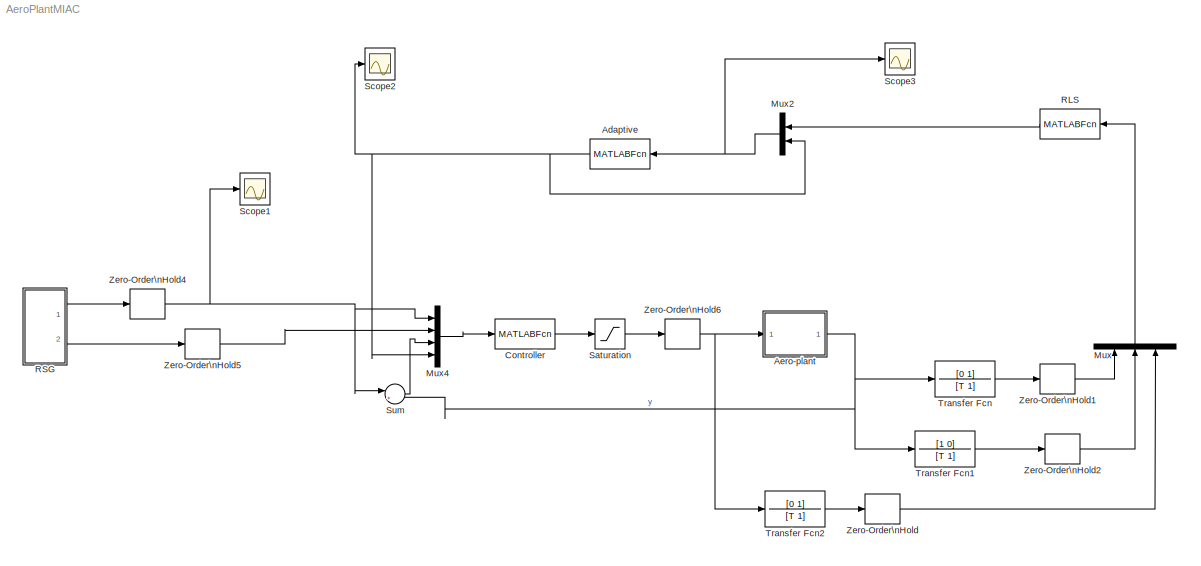
MODEL AeroPlantMIAC
KIND model
BLOCK [MATLABFcn] Adaptive
  MATLABFcn = adaptive
  Ports = [1, 1]
  SID = 1
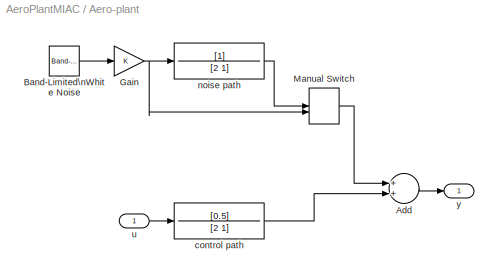
BLOCK [SubSystem] Aero-plant
  Ports = [1, 1]
  RequestExecContextInheritance = off
  SID = 2
BLOCK [Sum] Aero-plant/Add
  InputSameDT = off
  OutDataTypeStr = Inherit: Inherit via internal rule
  Ports = [2, 1]
  SID = 4
  SaturateOnIntegerOverflow = off
BLOCK [Reference] Aero-plant/Band-Limited\nWhite Noise  REF=simulink/Sources/Band-Limited\nWhite Noise
  Cov = [sigma2e*Tc]
  Ports = [0, 1]
  SID = 5
  SourceBlock = simulink/Sources/Band-Limited\nWhite Noise
  SourceProductBaseCode = SL
  SourceProductName = Simulink
  SourceType = Band-Limited White Noise.
  Ts = Tc
  VectorParams1D = on
  seed = [23341]
BLOCK [Gain] Aero-plant/Gain
  OutDataTypeStr = Inherit: Inherit via internal rule
  ParamDataTypeStr = Inherit: Inherit via internal rule
  SID = 6
  SaturateOnIntegerOverflow = off
BLOCK [ManualSwitch] Aero-plant/Manual Switch
  SID = 7
BLOCK [TransferFcn] Aero-plant/control path
  Denominator = [2 1]
  Numerator = [0.5]
  SID = 8
BLOCK [TransferFcn] Aero-plant/noise path
  Denominator = [2 1]
  SID = 9
BLOCK [Inport] Aero-plant/u
  IconDisplay = Port number
  SID = 3
BLOCK [Outport] Aero-plant/y
  IconDisplay = Port number
  SID = 10
BLOCK [MATLABFcn] Controller
  MATLABFcn = controller
  OutputDimensions = 1
  Ports = [1, 1]
  SID = 11
BLOCK [Mux] Mux
  DisplayOption = bar
  Inputs = 3
  Ports = [3, 1]
  SID = 12
BLOCK [Mux] Mux2
  DisplayOption = bar
  Inputs = [2 3]
  Ports = [2, 1]
  SID = 14
BLOCK [Mux] Mux4
  DisplayOption = bar
  Ports = [4, 1]
  SID = 43
BLOCK [MATLABFcn] RLS
  MATLABFcn = my_RLS
  OutputDimensions = 2
  Ports = [1, 1]
  SID = 16
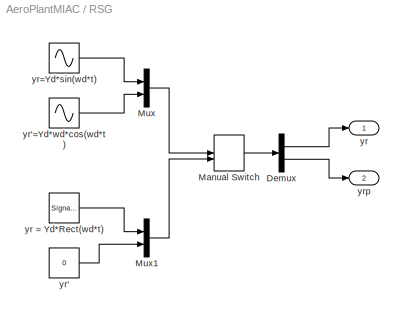
BLOCK [SubSystem] RSG
  Ports = [0, 2]
  RequestExecContextInheritance = off
  SID = 17
BLOCK [Demux] RSG/Demux
  DisplayOption = bar
  Outputs = 2
  Ports = [1, 2]
  SID = 18
BLOCK [ManualSwitch] RSG/Manual Switch
  SID = 19
BLOCK [Mux] RSG/Mux
  DisplayOption = bar
  Inputs = 2
  Ports = [2, 1]
  SID = 20
BLOCK [Mux] RSG/Mux1
  DisplayOption = bar
  Inputs = 2
  Ports = [2, 1]
  SID = 21
BLOCK [Outport] RSG/yr
  IconDisplay = Port number
  SID = 26
BLOCK [SignalGenerator] RSG/yr = Yd*Rect(wd*t)
  Amplitude = Yr
  Frequency = wr
  Ports = [0, 1]
  SID = 22
  Units = rad/sec
  WaveForm = square
BLOCK [Constant] RSG/yr'
  SID = 23
  Value = 0
BLOCK [Sin] RSG/yr'=Yd*wd*cos(wd*t)
  Amplitude = Yr*wr
  Frequency = wr
  Phase = pi/2
  Ports = [0, 1]
  SID = 24
  SampleTime = 0
BLOCK [Sin] RSG/yr=Yd*sin(wd*t)
  Amplitude = Yr
  Frequency = wr
  Ports = [0, 1]
  SID = 25
  SampleTime = 0
BLOCK [Outport] RSG/yrp
  IconDisplay = Port number
  Port = 2
  SID = 27
BLOCK [Saturate] Saturation
  InputPortMap = u0
  LowerLimit = -pi/2
  Ports = [1, 1]
  SID = 28
  UpperLimit = pi/2
BLOCK [Scope] Scope1
  Floating = off
  NumInputPorts = 1
  Ports = [1]
  SID = 30
  ScopeSpecificationString = Simulink.scopes.TimeScopeBlockCfg('CurrentConfiguration', extmgr.ConfigurationSet(extmgr.Configuration('Core','General UI',true),extmgr.Configuration('Core','Source UI',true),extmgr.Configuration('Sources','WiredSimulink',true,'DataLogging',true,'DataLoggingVariableName','ScopeData1','DataLoggingSaveFormat','StructureWithTime','DataLoggingDecimation','1','DataLoggingDecimateData',true),extmgr.Conf...<+1717ch>
BLOCK [Scope] Scope2
  Floating = off
  NumInputPorts = 1
  Ports = [1]
  SID = 31
  ScopeSpecificationString = Simulink.scopes.TimeScopeBlockCfg('CurrentConfiguration', extmgr.ConfigurationSet(extmgr.Configuration('Core','General UI',true),extmgr.Configuration('Core','Source UI',true),extmgr.Configuration('Sources','WiredSimulink',true,'DataLogging',true,'DataLoggingVariableName','ScopeData2','DataLoggingSaveFormat','StructureWithTime','DataLoggingDecimation','1','DataLoggingDecimateData',true),extmgr.Conf...<+1691ch>
BLOCK [Scope] Scope3
  Floating = off
  NumInputPorts = 1
  Ports = [1]
  SID = 32
  ScopeSpecificationString = Simulink.scopes.TimeScopeBlockCfg('CurrentConfiguration', extmgr.ConfigurationSet(extmgr.Configuration('Core','General UI',true),extmgr.Configuration('Core','Source UI',true),extmgr.Configuration('Sources','WiredSimulink',true,'DataLogging',true,'DataLoggingVariableName','ScopeData3','DataLoggingSaveFormat','StructureWithTime','DataLoggingDecimation','1','DataLoggingDecimateData',true),extmgr.Conf...<+1751ch>
BLOCK [Sum] Sum
  IconShape = round
  InputSameDT = off
  Inputs = |+-
  OutDataTypeStr = Inherit: Inherit via internal rule
  Ports = [2, 1]
  SID = 33
  SaturateOnIntegerOverflow = off
BLOCK [TransferFcn] Transfer Fcn
  Denominator = [T 1]
  Numerator = [0 1]
  SID = 34
BLOCK [TransferFcn] Transfer Fcn1
  Denominator = [T 1]
  Numerator = [1 0]
  SID = 35
BLOCK [TransferFcn] Transfer Fcn2
  Denominator = [T 1]
  Numerator = [0 1]
  SID = 36
BLOCK [ZeroOrderHold] Zero-Order\nHold
  SID = 37
  SampleTime = Ta
BLOCK [ZeroOrderHold] Zero-Order\nHold1
  SID = 38
  SampleTime = Ta
BLOCK [ZeroOrderHold] Zero-Order\nHold2
  SID = 39
  SampleTime = Ta
BLOCK [ZeroOrderHold] Zero-Order\nHold4
  SID = 40
  SampleTime = Tc
BLOCK [ZeroOrderHold] Zero-Order\nHold5
  SID = 41
  SampleTime = Tc
BLOCK [ZeroOrderHold] Zero-Order\nHold6
  SID = 42
  SampleTime = Tc
NET Adaptive:1 -> Mux2:2, Mux4:4, Scope2:1
LINE Aero-plant/Add:1 -> Aero-plant/y:1
LINE Aero-plant/Band-Limited\nWhite Noise:1 -> Aero-plant/Gain:1
NET Aero-plant/Gain:1 -> Aero-plant/Manual Switch:2, Aero-plant/noise path:1
LINE Aero-plant/Manual Switch:1 -> Aero-plant/Add:1
LINE Aero-plant/control path:1 -> Aero-plant/Add:2
LINE Aero-plant/noise path:1 -> Aero-plant/Manual Switch:1
LINE Aero-plant/u:1 -> Aero-plant/control path:1
NET Aero-plant:1 -> Sum:2, Transfer Fcn1:1, Transfer Fcn:1
LINE Controller:1 -> Saturation:1
NET Mux2:1 -> Adaptive:1, Scope3:1
LINE Mux4:1 -> Controller:1
LINE Mux:1 -> RLS:1
LINE RLS:1 -> Mux2:1
LINE RSG/Demux:1 -> RSG/yr:1
LINE RSG/Demux:2 -> RSG/yrp:1
LINE RSG/Manual Switch:1 -> RSG/Demux:1
LINE RSG/Mux1:1 -> RSG/Manual Switch:2
LINE RSG/Mux:1 -> RSG/Manual Switch:1
LINE RSG/yr = Yd*Rect(wd*t):1 -> RSG/Mux1:1
LINE RSG/yr':1 -> RSG/Mux1:2
LINE RSG/yr'=Yd*wd*cos(wd*t):1 -> RSG/Mux:2
LINE RSG/yr=Yd*sin(wd*t):1 -> RSG/Mux:1
LINE RSG:1 -> Zero-Order\nHold4:1
LINE RSG:2 -> Zero-Order\nHold5:1
LINE Saturation:1 -> Zero-Order\nHold6:1
LINE Sum:1 -> Mux4:3
LINE Transfer Fcn1:1 -> Zero-Order\nHold2:1
LINE Transfer Fcn2:1 -> Zero-Order\nHold:1
LINE Transfer Fcn:1 -> Zero-Order\nHold1:1
LINE Zero-Order\nHold1:1 -> Mux:1
LINE Zero-Order\nHold2:1 -> Mux:2
NET Zero-Order\nHold4:1 -> Mux4:1, Scope1:1, Sum:1
LINE Zero-Order\nHold5:1 -> Mux4:2
NET Zero-Order\nHold6:1 -> Aero-plant:1, Transfer Fcn2:1
LINE Zero-Order\nHold:1 -> Mux:3
note: NET lines group one-source signal fan-out (src -> all destinations, sorted); 1:1 wires keep LINE
